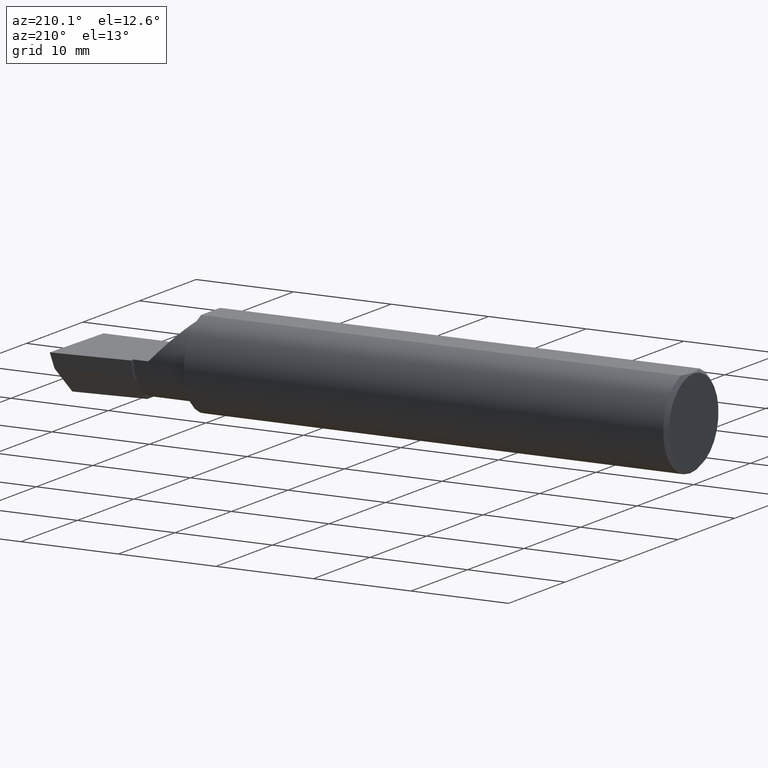
[diagram: clean part render]
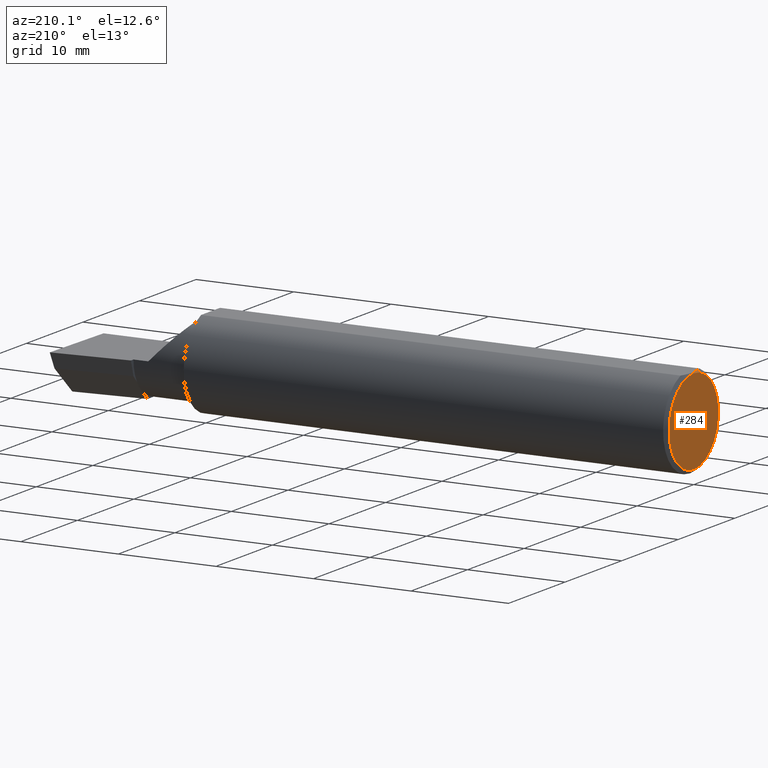
[diagram: same view with one face highlighted and labeled with its STEP entity id]
A machine part, auxiliary view. The second image highlights one B-rep face of the part: STEP entity #284.
In plain terms, the highlighted planar face has unit normal (1, 0, 0).
Its self-contained STEP definition (entity closure, byte-faithful):
#6 = DIRECTION ( 'NONE',  ( 1.000000000000000000, 0.0000000000000000000, 0.0000000000000000000 ) ) ;
#49 = EDGE_CURVE ( 'NONE', #141, #159, #173, .T. ) ;
#61 = CARTESIAN_POINT ( 'NONE',  ( 0.0000000000000000000, 0.0000000000000000000, -0.1723499999999996424 ) ) ;
#113 = CARTESIAN_POINT ( 'NONE',  ( 0.0000000000000000000, 2.202527268266512578E-17, 0.1723499999999996424 ) ) ;
#132 = DIRECTION ( 'NONE',  ( -1.000000000000000000, -0.0000000000000000000, -0.0000000000000000000 ) ) ;
#141 = VERTEX_POINT ( 'NONE', #61 ) ;
#155 = CARTESIAN_POINT ( 'NONE',  ( 0.0000000000000000000, 0.0000000000000000000, 0.0000000000000000000 ) ) ;
#159 = VERTEX_POINT ( 'NONE', #113 ) ;
#165 = ORIENTED_EDGE ( 'NONE', *, *, #49, .T. ) ;
#173 = CIRCLE ( 'NONE', #346, 0.1723499999999996424 ) ;
#186 = AXIS2_PLACEMENT_3D ( 'NONE', #155, #6, #409 ) ;
#208 = CARTESIAN_POINT ( 'NONE',  ( 0.0000000000000000000, 0.0000000000000000000, 0.0000000000000000000 ) ) ;
#228 = CARTESIAN_POINT ( 'NONE',  ( 0.0000000000000000000, 0.0000000000000000000, 0.0000000000000000000 ) ) ;
#247 = DIRECTION ( 'NONE',  ( -1.000000000000000000, -0.0000000000000000000, -0.0000000000000000000 ) ) ;
#254 = FACE_OUTER_BOUND ( 'NONE', #509, .T. ) ;
#262 = EDGE_CURVE ( 'NONE', #159, #141, #520, .T. ) ;
#283 = PLANE ( 'NONE',  #186 ) ;
#284 = ADVANCED_FACE ( 'NONE', ( #254 ), #283, .F. ) ;
#341 = ORIENTED_EDGE ( 'NONE', *, *, #262, .T. ) ;
#346 = AXIS2_PLACEMENT_3D ( 'NONE', #228, #247, #497 ) ;
#409 = DIRECTION ( 'NONE',  ( 0.0000000000000000000, 0.0000000000000000000, -1.000000000000000000 ) ) ;
#497 = DIRECTION ( 'NONE',  ( 0.0000000000000000000, 0.0000000000000000000, 1.000000000000000000 ) ) ;
#509 = EDGE_LOOP ( 'NONE', ( #165, #341 ) ) ;
#520 = CIRCLE ( 'NONE', #525, 0.1723499999999996424 ) ;
#525 = AXIS2_PLACEMENT_3D ( 'NONE', #208, #132, #594 ) ;
#594 = DIRECTION ( 'NONE',  ( 0.0000000000000000000, 0.0000000000000000000, 1.000000000000000000 ) ) ;